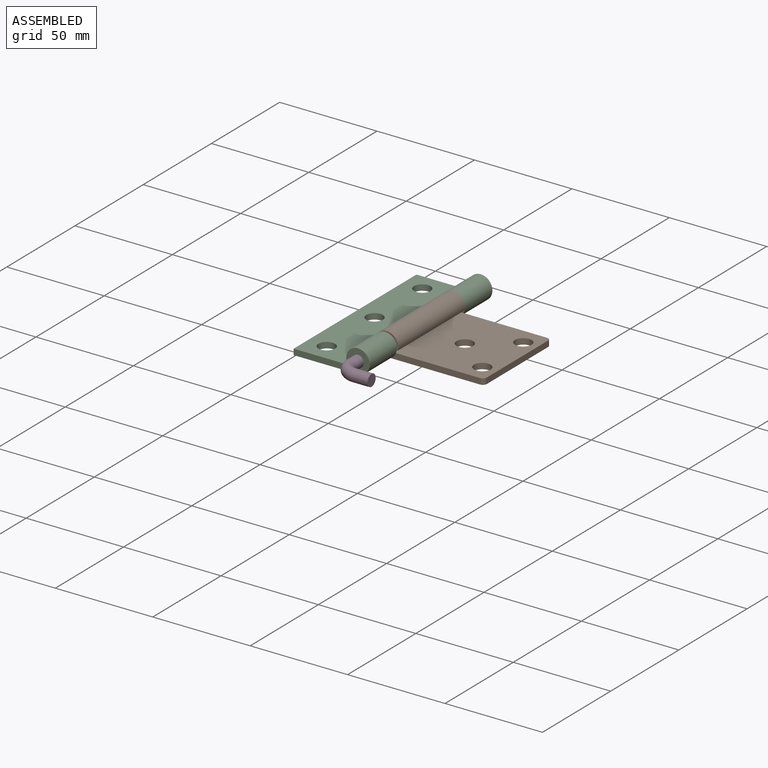
[diagram: assembled view]
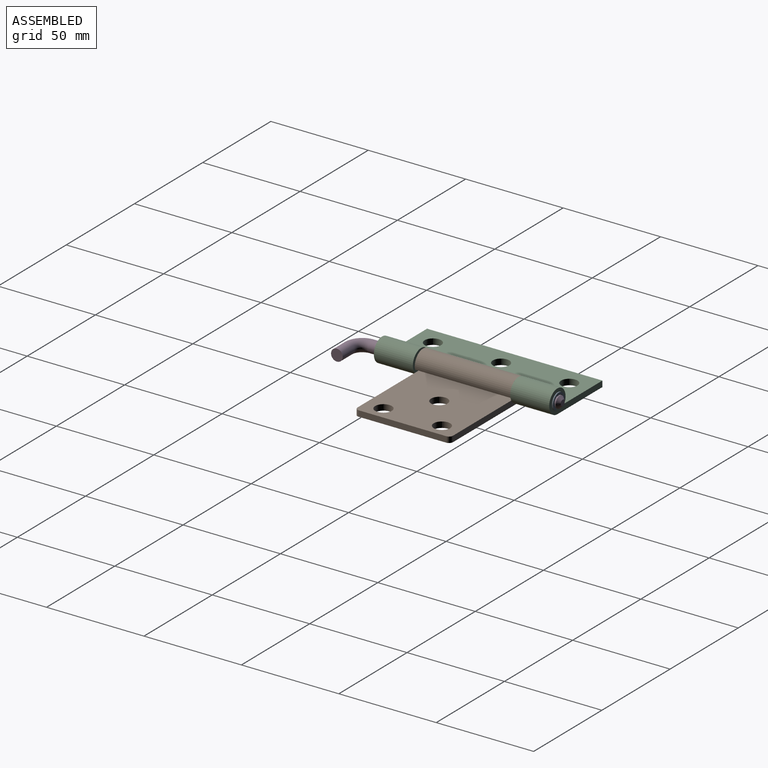
[diagram: assembled view, second angle]
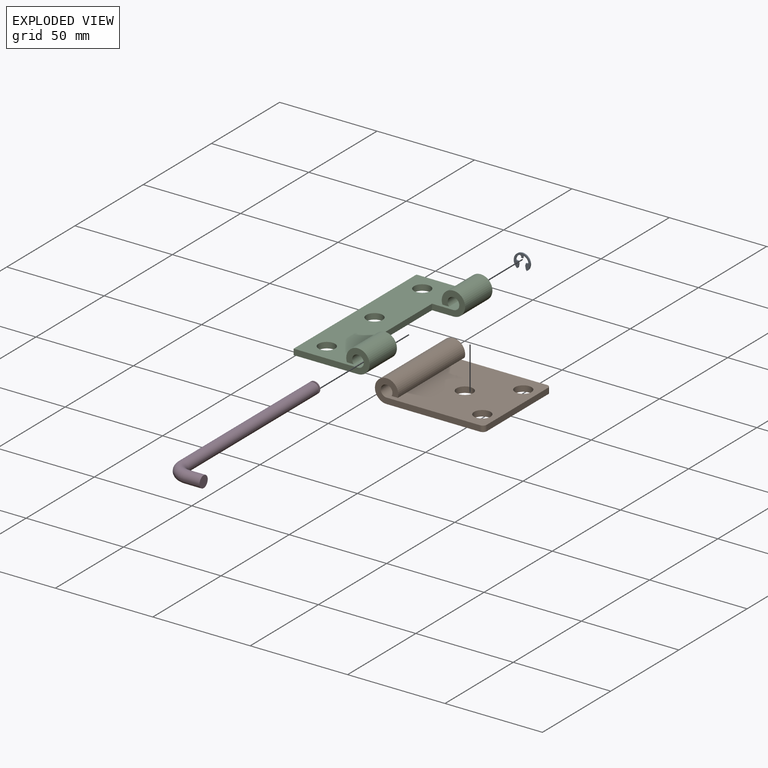
[diagram: exploded view]
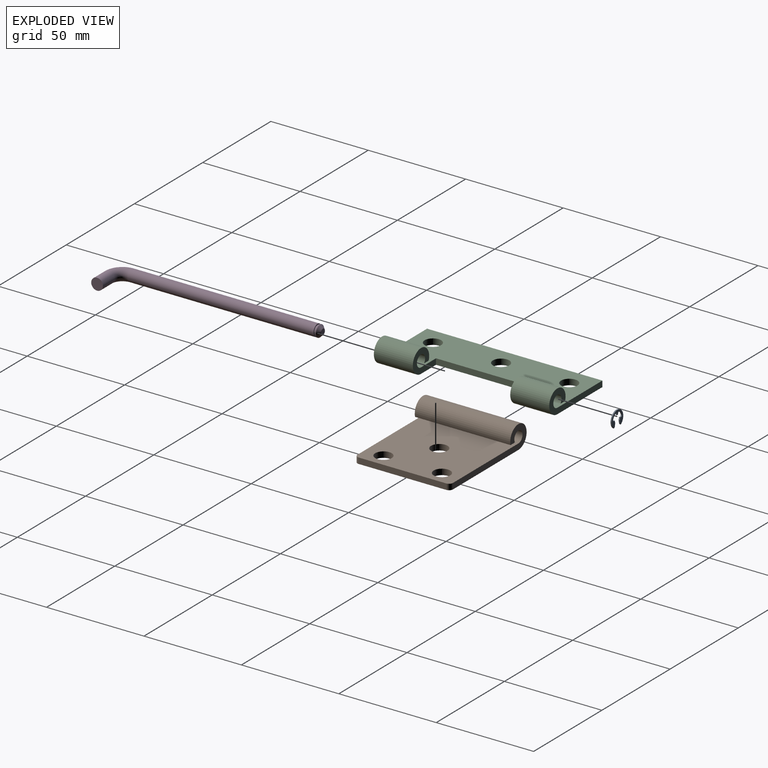
[diagram: exploded view, second angle]
ASSEMBLY  parts=4 mates=3
PART A: 20 faces, bbox 8.5x0.6x7.7 mm
  f0: plane 0.6x0.53mm, normal (-0.73,0,-0.69), area 0.4mm2, adj f1,f2,f14,f19
  f1: cylinder r=4.25mm len=8.5mm, axis (0,-1,0), area 12.8mm2, adj f0,f2,f3,f19
  f2: plane 8.5x7.7mm, normal (0,1,0), area 25.7mm2, adj f0,f1,f3,f4,f5,f6,f7,f8
  f3: plane 0.6x0.53mm, normal (0.73,0,-0.69), area 0.4mm2, adj f1,f2,f13,f19
  f4: cylinder r=0.64mm len=0.89mm, axis (0,-1,0), area 0.8mm2, adj f2,f5,f16,f19
  f5: cylinder r=3.3mm len=2.25mm, axis (0,-1,0), area 1.8mm2, adj f2,f4,f6,f19
  f6: cylinder r=0.64mm len=0.79mm, axis (0,-1,0), area 0.7mm2, adj f2,f5,f7,f19
  f7: plane 0.64x0.6mm, normal (0,0,1), area 0.4mm2, adj f2,f6,f15,f19
  f8: cylinder r=0.64mm len=0.89mm, axis (0,-1,0), area 0.8mm2, adj f2,f9,f11,f19
  f9: plane 0.6x0.54mm, normal (-1,0,0), area 0.3mm2, adj f2,f8,f17,f19
  f10: cylinder r=0.64mm len=0.79mm, axis (0,-1,0), area 0.7mm2, adj f2,f11,f18,f19
  f11: cylinder r=3.3mm len=2.25mm, axis (0,-1,0), area 1.8mm2, adj f2,f8,f10,f19
  f12: cylinder r=1.95mm len=1.08mm, axis (0,-1,0), area 0.7mm2, adj f2,f13,f18,f19
  f13: plane 1.84x0.6mm, normal (0.98,0,-0.19), area 1.1mm2, adj f2,f3,f12,f19
  f14: plane 1.84x0.6mm, normal (-0.98,0,-0.19), area 1.1mm2, adj f0,f2,f15,f19
  f15: cylinder r=1.95mm len=1.08mm, axis (0,-1,0), area 0.7mm2, adj f2,f7,f14,f19
  f16: plane 0.6x0.54mm, normal (1,0,0), area 0.3mm2, adj f2,f4,f17,f19
  f17: cylinder r=1.95mm len=0.84mm, axis (0,-1,0), area 0.5mm2, adj f2,f9,f16,f19
  f18: plane 0.64x0.6mm, normal (0,0,1), area 0.4mm2, adj f2,f10,f12,f19
  f19: plane 8.5x7.7mm, normal (0,-1,0), area 25.7mm2, adj f0,f1,f3,f4,f5,f6,f7,f8
PART B: 13 faces, bbox 56x49x12 mm
  f0: cylinder r=2mm len=3mm, axis (0,0,1), area 9.4mm2, adj f1,f2,f7,f11
  f1: plane 45x3mm, normal (1,0,0), area 135mm2, adj f0,f2,f3,f7
  f2: plane 50x49mm, normal (0,0,1), area 2278mm2, adj f0,f1,f3,f4,f5,f6,f10,f11
  f3: cylinder r=2mm len=3mm, axis (0,0,-1), area 9.4mm2, adj f1,f2,f7,f12
  f4: cylinder r=4.25mm len=8.5mm, axis (0,0,1), area 80.1mm2, adj f2,f7
  f5: cylinder r=4.25mm len=8.5mm, axis (0,0,1), area 80.1mm2, adj f2,f7
  f6: cylinder r=4.25mm len=8.5mm, axis (0,0,1), area 80.1mm2, adj f2,f7
  f7: plane 50x49mm, normal (0,0,-1), area 2278mm2, adj f0,f1,f3,f4,f5,f6,f8,f11
  f8: cylinder r=6mm len=49mm, axis (0,-1,0), area 1463.3mm2, adj f7,f9,f11,f12
  f9: plane 49x3.23mm, normal (0,0,-1), area 158.5mm2, adj f8,f10,f11,f12
  f10: cylinder r=3mm len=49mm, axis (0,-1,0), area 773.7mm2, adj f2,f9,f11,f12
  f11: plane 54x12mm, normal (0,1,0), area 212.4mm2, adj f0,f2,f7,f8,f9,f10
  f12: plane 54x12mm, normal (0,-1,0), area 212.4mm2, adj f2,f3,f7,f8,f9,f10
PART C: 17 faces, bbox 39x90x12 mm
  f0: cylinder r=4.25mm len=8.5mm, axis (0,0,1), area 80.1mm2, adj f12,f14
  f1: cylinder r=4.25mm len=8.5mm, axis (0,0,1), area 80.1mm2, adj f12,f14
  f2: cylinder r=4.25mm len=8.5mm, axis (0,0,1), area 80.1mm2, adj f12,f14
  f3: plane 17x12mm, normal (0,1,0), area 102.9mm2, adj f5,f7,f9,f11,f12,f14
  f4: plane 17x12mm, normal (0,-1,0), area 102.9mm2, adj f5,f6,f8,f10,f12,f14
  f5: plane 50x3mm, normal (-1,0,0), area 150mm2, adj f3,f4,f12,f14
  f6: cylinder r=3mm len=20mm, axis (0,-1,0), area 326.5mm2, adj f4,f8,f14,f15
  f7: cylinder r=3mm len=20mm, axis (0,-1,0), area 326.5mm2, adj f3,f9,f14,f16
  f8: plane 20x3.42mm, normal (0,0,-1), area 68.4mm2, adj f4,f6,f10,f15
  f9: plane 20x3.42mm, normal (0,0,-1), area 68.4mm2, adj f3,f7,f11,f16
  f10: cylinder r=6mm len=20mm, axis (0,-1,0), area 606.3mm2, adj f4,f8,f12,f15
  f11: cylinder r=6mm len=20mm, axis (0,-1,0), area 606.3mm2, adj f3,f9,f12,f16
  f12: plane 90x33mm, normal (0,0,-1), area 2249.8mm2, adj f0,f1,f2,f3,f4,f5,f10,f11
  f13: plane 90x3mm, normal (1,0,0), area 270mm2, adj f12,f14,f15,f16
  f14: plane 90x33mm, normal (0,0,1), area 2249.8mm2, adj f0,f1,f2,f3,f4,f5,f6,f7
  f15: plane 39x12mm, normal (0,1,0), area 168.9mm2, adj f6,f8,f10,f12,f13,f14
  f16: plane 39x12mm, normal (0,-1,0), area 168.9mm2, adj f7,f9,f11,f12,f13,f14
PART D: 10 faces, bbox 6x108.8x19.4 mm
  f0: cone r=2.25mm half-angle=45deg, axis (0,-1,0), area 30mm2, adj f1,f2
  f1: cylinder r=3mm len=6mm, axis (0,1,0), area 9.4mm2, adj f0,f4
  f2: plane 3x3mm, normal (0,1,0), area 7.1mm2, adj f0
  f3: cylinder r=2.5mm len=5mm, axis (0,-1,0), area 11.6mm2, adj f4,f5
  f4: plane 6x6mm, normal (0,-1,0), area 8.6mm2, adj f1,f3
  f5: plane 6x6mm, normal (0,1,0), area 8.6mm2, adj f3,f6
  f6: cylinder r=3mm len=95.26mm, axis (0,1,0), area 1795.6mm2, adj f5,f7
  f7: torus R=7mm, axis (-1,0,0), area 207.3mm2, adj f6,f8
  f8: cylinder r=3mm len=8.59mm, axis (0,0,1), area 161.8mm2, adj f7,f9
  f9: plane 6x6mm, normal (0,0,-1), area 28.3mm2, adj f8
PLACE A t=(361.59,96,5.51)mm
PLACE B t=(411.91,75.26,1.14)mm
PLACE C rot(axis=(0,0,-1),180deg) t=(328.59,5.26,0.83)mm
PLACE D rot(axis=(0,-1,0),90deg) t=(361.59,39.43,5.51)mm
MATE revolute C.f6 <-> D.f0  axis (0,1,0) through (361.59,95.26,5.51)mm
MATE revolute C.f6 <-> B.f8  axis (0,-1,0) through (361.59,75.26,5.51)mm
MATE revolute A.f1 <-> D.f0  axis (0,1,0) through (361.59,96,5.51)mm
